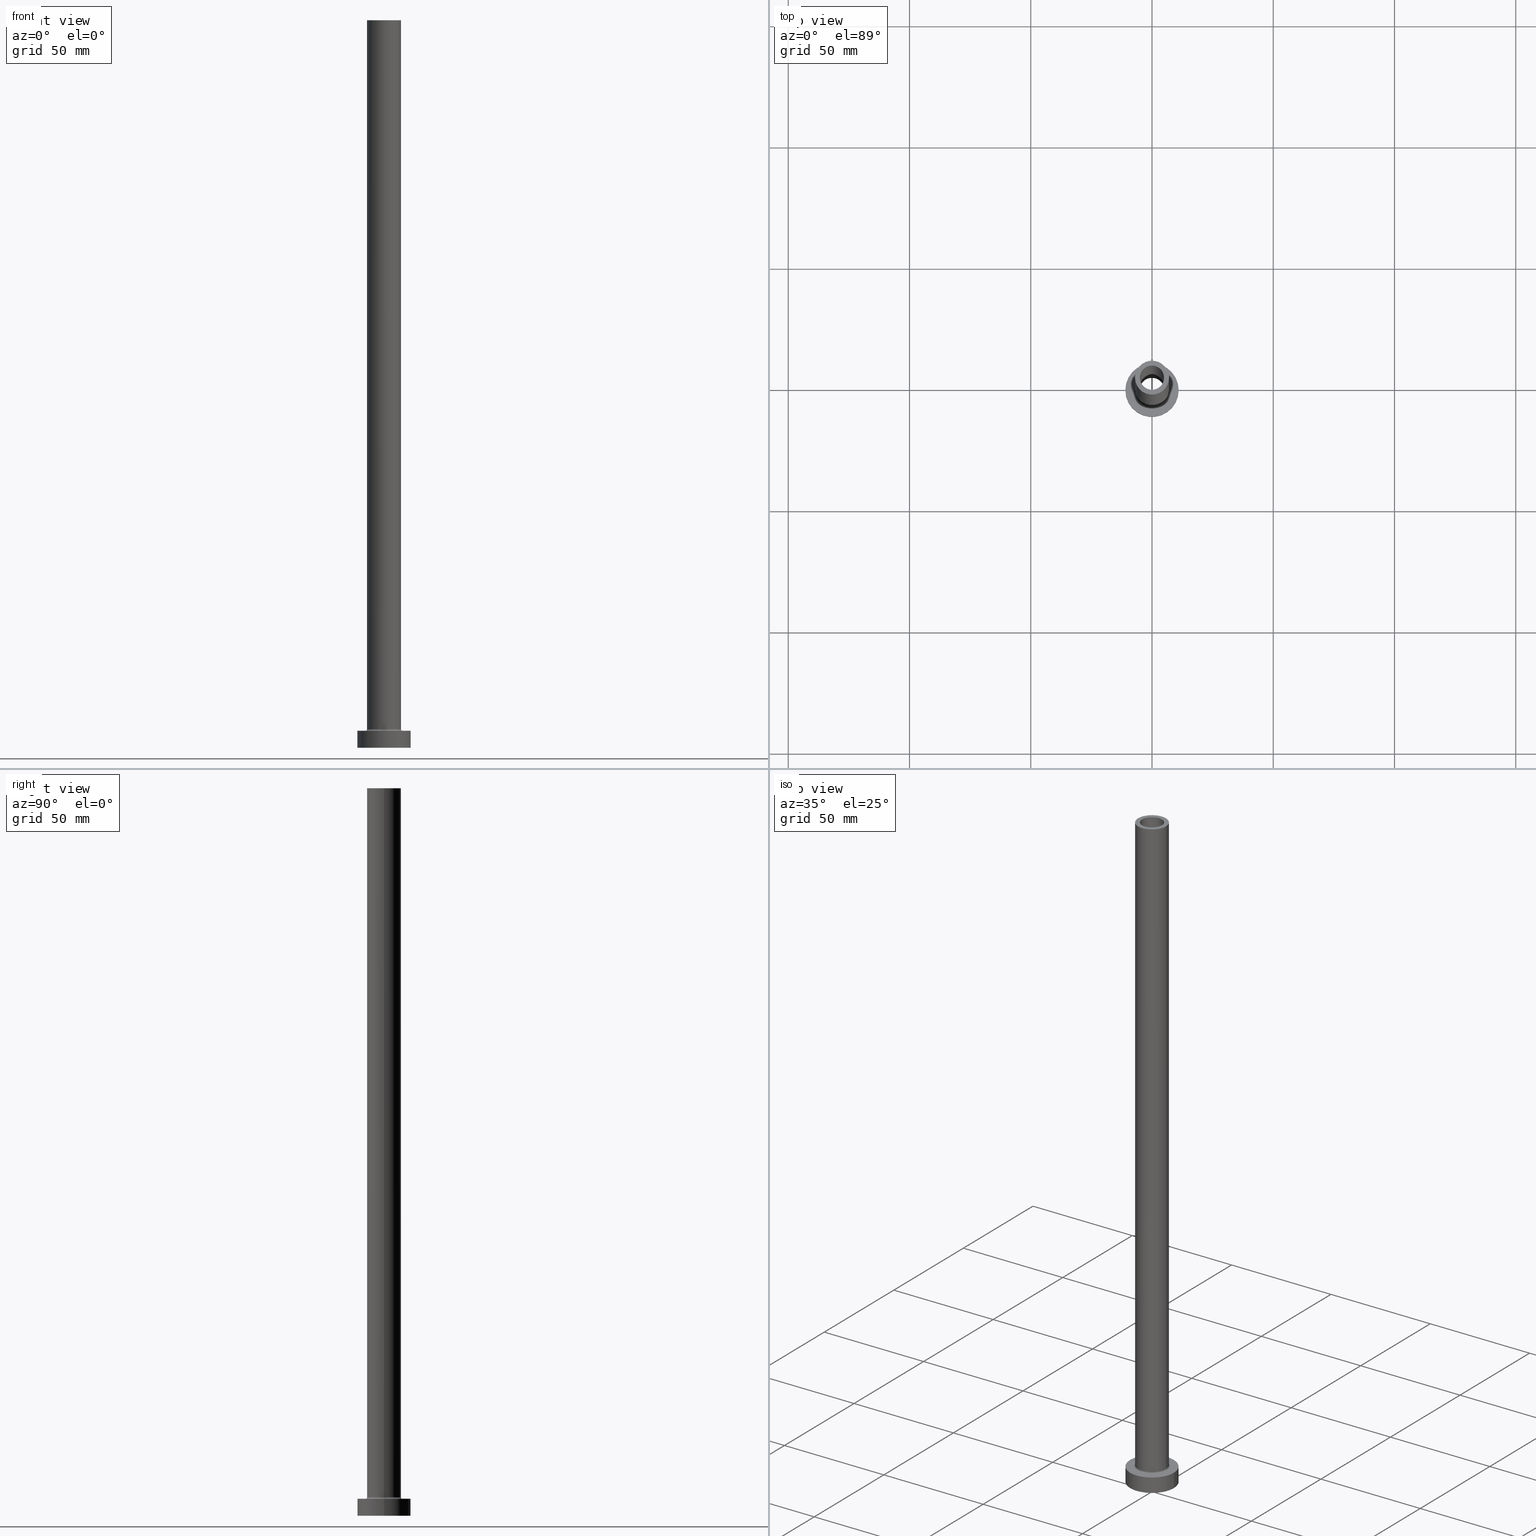
[diagram: canonical four-view strip — front | top / right | iso, engineering-drawing reading convention]
A machine part, canonical four-view strip (front | top / right | iso — engineering-drawing reading convention). The complete STEP part file that produces these views, byte-faithful:
ISO-10303-21;
HEADER;
FILE_DESCRIPTION (( 'STEP AP203' ),
    '1' );
FILE_NAME ('86ca.STEP',
    '2023-02-13T10:07:08',
    ( '' ),
    ( '' ),
    'SwSTEP 2.0',
    'SolidWorks 2019',
    '' );
FILE_SCHEMA (( 'CONFIG_CONTROL_DESIGN' ));
ENDSEC;

DATA;
#1 = FACE_BOUND ( 'NONE', #337, .T. ) ;
#2 = DIRECTION ( 'NONE',  ( 0.000000000000000000, 0.000000000000000000, -1.000000000000000000 ) ) ;
#3 = AXIS2_PLACEMENT_3D ( 'NONE', #274, #424, #245 ) ;
#4 = ORIENTED_EDGE ( 'NONE', *, *, #308, .T. ) ;
#5 = DIRECTION ( 'NONE',  ( 1.000000000000000000, 0.000000000000000000, 0.000000000000000000 ) ) ;
#6 = FACE_OUTER_BOUND ( 'NONE', #73, .T. ) ;
#7 = ORIENTED_EDGE ( 'NONE', *, *, #118, .F. ) ;
#8 = EDGE_LOOP ( 'NONE', ( #370, #262, #400, #59 ) ) ;
#9 = SECURITY_CLASSIFICATION ( '', '', #57 ) ;
#10 = DATE_AND_TIME ( #332, #362 ) ;
#11 = ORIENTED_EDGE ( 'NONE', *, *, #217, .F. ) ;
#12 = DIRECTION ( 'NONE',  ( 1.000000000000000000, 0.000000000000000000, 0.000000000000000000 ) ) ;
#13 = EDGE_LOOP ( 'NONE', ( #140, #438, #252, #247 ) ) ;
#14 = AXIS2_PLACEMENT_3D ( 'NONE', #342, #459, #51 ) ;
#15 = ORIENTED_EDGE ( 'NONE', *, *, #239, .T. ) ;
#16 = VECTOR ( 'NONE', #54, 1000.000000000000000 ) ;
#17 = CARTESIAN_POINT ( 'NONE',  ( 0.000000000000000000, 0.000000000000000000, 269.5663996924428716 ) ) ;
#18 = DIRECTION ( 'NONE',  ( 0.000000000000000000, 0.000000000000000000, 1.000000000000000000 ) ) ;
#19 = AXIS2_PLACEMENT_3D ( 'NONE', #119, #265, #304 ) ;
#20 = CYLINDRICAL_SURFACE ( 'NONE', #394, 11.00000000000000000 ) ;
#21 = CIRCLE ( 'NONE', #197, 5.150000000000001243 ) ;
#22 = PLANE ( 'NONE',  #282 ) ;
#23 = DIRECTION ( 'NONE',  ( 0.000000000000000000, 0.000000000000000000, -1.000000000000000000 ) ) ;
#24 = DIRECTION ( 'NONE',  ( 1.000000000000000000, 0.000000000000000000, 0.000000000000000000 ) ) ;
#25 = EDGE_CURVE ( 'NONE', #189, #432, #227, .T. ) ;
#26 = DIRECTION ( 'NONE',  ( -0.000000000000000000, -0.000000000000000000, -1.000000000000000000 ) ) ;
#27 = AXIS2_PLACEMENT_3D ( 'NONE', #357, #392, #31 ) ;
#28 = EDGE_CURVE ( 'NONE', #456, #371, #162, .T. ) ;
#29 = CARTESIAN_POINT ( 'NONE',  ( 0.000000000000000000, 0.000000000000000000, 300.0000000000000000 ) ) ;
#30 = DIRECTION ( 'NONE',  ( -1.000000000000000000, 0.000000000000000000, 0.000000000000000000 ) ) ;
#31 = DIRECTION ( 'NONE',  ( 1.000000000000000000, 0.000000000000000000, -0.000000000000000000 ) ) ;
#32 = PERSON ( 'NEUR�EN�', 'NEUR�EN�', 'NEUR�EN�', ('NEUR�EN�'), ('NEUR�EN�'), ('NEUR�EN�') ) ;
#33 = DATE_AND_TIME ( #45, #205 ) ;
#34 = FACE_OUTER_BOUND ( 'NONE', #159, .T. ) ;
#35 = DIRECTION ( 'NONE',  ( 1.000000000000000000, 0.000000000000000000, 0.000000000000000000 ) ) ;
#36 = CARTESIAN_POINT ( 'NONE',  ( 0.000000000000000000, 0.000000000000000000, 300.0000000000000000 ) ) ;
#37 = PERSON_AND_ORGANIZATION ( #32, #352 ) ;
#38 = PRODUCT_DEFINITION ( 'NEZN�M�', '', #215, #402 ) ;
#39 = ORIENTED_EDGE ( 'NONE', *, *, #203, .T. ) ;
#40 = CIRCLE ( 'NONE', #195, 0.7000000000000000666 ) ;
#41 = APPROVAL_STATUS ( 'not_yet_approved' ) ;
#42 = CIRCLE ( 'NONE', #166, 7.000000000000000888 ) ;
#43 = VERTEX_POINT ( 'NONE', #448 ) ;
#44 = EDGE_CURVE ( 'NONE', #216, #436, #163, .T. ) ;
#45 = CALENDAR_DATE ( 2023, 13, 2 ) ;
#46 = VERTEX_POINT ( 'NONE', #341 ) ;
#47 = ORIENTED_EDGE ( 'NONE', *, *, #25, .T. ) ;
#48 = CALENDAR_DATE ( 2023, 13, 2 ) ;
#49 = CARTESIAN_POINT ( 'NONE',  ( 0.000000000000000000, 0.000000000000000000, 7.699999999999985079 ) ) ;
#50 = AXIS2_PLACEMENT_3D ( 'NONE', #102, #219, #35 ) ;
#51 = DIRECTION ( 'NONE',  ( 1.000000000000000000, 0.000000000000000000, 0.000000000000000000 ) ) ;
#52 = CARTESIAN_POINT ( 'NONE',  ( 0.000000000000000000, 0.000000000000000000, 7.699999999999985079 ) ) ;
#53 = CIRCLE ( 'NONE', #14, 5.150000000000001243 ) ;
#54 = DIRECTION ( 'NONE',  ( 0.000000000000000000, 0.000000000000000000, -1.000000000000000000 ) ) ;
#55 = PRODUCT_RELATED_PRODUCT_CATEGORY ( 'detail', '', ( #148 ) ) ;
#56 = DIRECTION ( 'NONE',  ( 0.000000000000000000, -1.000000000000000000, 0.000000000000000000 ) ) ;
#57 = SECURITY_CLASSIFICATION_LEVEL ( 'unclassified' ) ;
#58 = CARTESIAN_POINT ( 'NONE',  ( -5.000000000000000000, 0.000000000000000000, 300.0000000000000000 ) ) ;
#59 = ORIENTED_EDGE ( 'NONE', *, *, #295, .T. ) ;
#60 = DIRECTION ( 'NONE',  ( 1.000000000000000000, 0.000000000000000000, 0.000000000000000000 ) ) ;
#61 = CC_DESIGN_PERSON_AND_ORGANIZATION_ASSIGNMENT ( #415, #423, ( #215 ) ) ;
#62 = CARTESIAN_POINT ( 'NONE',  ( 0.000000000000000000, 0.000000000000000000, 0.000000000000000000 ) ) ;
#63 = LOCAL_TIME ( 11, 7, 8.000000000000000000, #78 ) ;
#64 = CARTESIAN_POINT ( 'NONE',  ( 5.000000000000000000, 6.123233995736765296E-16, 300.0000000000000000 ) ) ;
#65 = ORIENTED_EDGE ( 'NONE', *, *, #287, .T. ) ;
#66 = CARTESIAN_POINT ( 'NONE',  ( 11.00000000000000000, 1.347111479062088405E-15, 7.000000000000000000 ) ) ;
#67 = CARTESIAN_POINT ( 'NONE',  ( 0.000000000000000000, 0.000000000000000000, 0.000000000000000000 ) ) ;
#68 = ORIENTED_EDGE ( 'NONE', *, *, #303, .T. ) ;
#69 = DIRECTION ( 'NONE',  ( -1.000000000000000000, 0.000000000000000000, 0.000000000000000000 ) ) ;
#70 = AXIS2_PLACEMENT_3D ( 'NONE', #356, #458, #30 ) ;
#71 = EDGE_LOOP ( 'NONE', ( #186, #389, #396, #112 ) ) ;
#72 = EDGE_CURVE ( 'NONE', #456, #46, #414, .T. ) ;
#73 = EDGE_LOOP ( 'NONE', ( #319, #355, #15, #105 ) ) ;
#74 = EDGE_LOOP ( 'NONE', ( #403, #188 ) ) ;
#75 =( LENGTH_UNIT ( ) NAMED_UNIT ( * ) SI_UNIT ( .MILLI., .METRE. ) );
#76 = VECTOR ( 'NONE', #126, 1000.000000000000000 ) ;
#77 = ORIENTED_EDGE ( 'NONE', *, *, #174, .T. ) ;
#78 = COORDINATED_UNIVERSAL_TIME_OFFSET ( 1, 0, .AHEAD. ) ;
#79 = CC_DESIGN_PERSON_AND_ORGANIZATION_ASSIGNMENT ( #294, #437, ( #38 ) ) ;
#80 = ORIENTED_EDGE ( 'NONE', *, *, #203, .F. ) ;
#81 = FACE_OUTER_BOUND ( 'NONE', #8, .T. ) ;
#82 = LINE ( 'NONE', #171, #76 ) ;
#83 = DIRECTION ( 'NONE',  ( 0.000000000000000000, 0.000000000000000000, 1.000000000000000000 ) ) ;
#84 = AXIS2_PLACEMENT_3D ( 'NONE', #430, #258, #367 ) ;
#85 = DIRECTION ( 'NONE',  ( 1.224646799147353207E-16, 1.000000000000000000, -0.000000000000000000 ) ) ;
#86 = EDGE_CURVE ( 'NONE', #216, #336, #151, .T. ) ;
#87 = DIRECTION ( 'NONE',  ( 1.000000000000000000, 0.000000000000000000, 0.000000000000000000 ) ) ;
#88 = SHAPE_DEFINITION_REPRESENTATION ( #387, #439 ) ;
#89 = EDGE_CURVE ( 'NONE', #399, #419, #40, .T. ) ;
#90 = CARTESIAN_POINT ( 'NONE',  ( 11.00000000000000000, 1.347111479062088405E-15, 7.000000000000000000 ) ) ;
#91 = APPROVAL_PERSON_ORGANIZATION ( #256, #280, #185 ) ;
#92 = DIRECTION ( 'NONE',  ( -0.000000000000000000, -0.000000000000000000, -1.000000000000000000 ) ) ;
#93 = COORDINATED_UNIVERSAL_TIME_OFFSET ( 1, 0, .AHEAD. ) ;
#94 = CARTESIAN_POINT ( 'NONE',  ( 0.000000000000000000, 0.000000000000000000, 300.0000000000000000 ) ) ;
#95 = LINE ( 'NONE', #377, #16 ) ;
#96 = VECTOR ( 'NONE', #421, 1000.000000000000000 ) ;
#97 = ORIENTED_EDGE ( 'NONE', *, *, #383, .T. ) ;
#98 = CYLINDRICAL_SURFACE ( 'NONE', #254, 5.150000000000001243 ) ;
#99 = AXIS2_PLACEMENT_3D ( 'NONE', #141, #167, #460 ) ;
#100 = DIRECTION ( 'NONE',  ( 1.000000000000000000, 0.000000000000000000, 0.000000000000000000 ) ) ;
#101 = EDGE_CURVE ( 'NONE', #220, #399, #212, .T. ) ;
#102 = CARTESIAN_POINT ( 'NONE',  ( 0.000000000000000000, 0.000000000000000000, 7.000000000000000000 ) ) ;
#103 = CARTESIAN_POINT ( 'NONE',  ( 0.000000000000000000, 0.000000000000000000, 0.000000000000000000 ) ) ;
#104 = DIRECTION ( 'NONE',  ( -0.000000000000000000, -0.000000000000000000, -1.000000000000000000 ) ) ;
#105 = ORIENTED_EDGE ( 'NONE', *, *, #118, .T. ) ;
#106 = ADVANCED_FACE ( 'NONE', ( #409 ), #268, .F. ) ;
#107 = CIRCLE ( 'NONE', #374, 5.000000000000000000 ) ;
#108 = EDGE_LOOP ( 'NONE', ( #152, #298, #327, #368 ) ) ;
#109 =( NAMED_UNIT ( * ) SI_UNIT ( $, .STERADIAN. ) SOLID_ANGLE_UNIT ( ) );
#110 = ORIENTED_EDGE ( 'NONE', *, *, #297, .F. ) ;
#111 = APPLICATION_CONTEXT ( 'configuration controlled 3d designs of mechanical parts and assemblies' ) ;
#112 = ORIENTED_EDGE ( 'NONE', *, *, #44, .F. ) ;
#113 = AXIS2_PLACEMENT_3D ( 'NONE', #234, #445, #233 ) ;
#114 = AXIS2_PLACEMENT_3D ( 'NONE', #62, #137, #24 ) ;
#115 = ORIENTED_EDGE ( 'NONE', *, *, #133, .F. ) ;
#116 = APPROVAL_PERSON_ORGANIZATION ( #237, #175, #449 ) ;
#117 = DIRECTION ( 'NONE',  ( 1.000000000000000000, 0.000000000000000000, 0.000000000000000000 ) ) ;
#118 = EDGE_CURVE ( 'NONE', #399, #220, #422, .T. ) ;
#119 = CARTESIAN_POINT ( 'NONE',  ( 0.000000000000000000, 0.000000000000000000, 7.000000000000000000 ) ) ;
#120 = CC_DESIGN_PERSON_AND_ORGANIZATION_ASSIGNMENT ( #37, #291, ( #148 ) ) ;
#121 = FACE_OUTER_BOUND ( 'NONE', #108, .T. ) ;
#122 = VECTOR ( 'NONE', #231, 1000.000000000000000 ) ;
#123 = CARTESIAN_POINT ( 'NONE',  ( 7.000000000000000888, 8.572527594031474176E-16, 300.0000000000000000 ) ) ;
#124 = APPROVAL_DATE_TIME ( #266, #143 ) ;
#125 = CALENDAR_DATE ( 2023, 13, 2 ) ;
#126 = DIRECTION ( 'NONE',  ( 0.000000000000000000, 0.000000000000000000, -1.000000000000000000 ) ) ;
#127 = CC_DESIGN_PERSON_AND_ORGANIZATION_ASSIGNMENT ( #452, #309, ( #215 ) ) ;
#128 = TOROIDAL_SURFACE ( 'NONE', #395, 7.700000000000001066, 0.6999999999999999556 ) ;
#129 = FACE_OUTER_BOUND ( 'NONE', #71, .T. ) ;
#130 = VECTOR ( 'NONE', #428, 1000.000000000000000 ) ;
#131 = PERSON_AND_ORGANIZATION_ROLE ( 'classification_officer' ) ;
#132 = ORIENTED_EDGE ( 'NONE', *, *, #242, .T. ) ;
#133 = EDGE_CURVE ( 'NONE', #46, #456, #53, .T. ) ;
#134 = LINE ( 'NONE', #66, #388 ) ;
#135 = CARTESIAN_POINT ( 'NONE',  ( 0.000000000000000000, 0.000000000000000000, 7.000000000000000000 ) ) ;
#136 = DATE_AND_TIME ( #125, #404 ) ;
#137 = DIRECTION ( 'NONE',  ( 0.000000000000000000, 0.000000000000000000, 1.000000000000000000 ) ) ;
#138 = CARTESIAN_POINT ( 'NONE',  ( -7.000000000000000888, 0.000000000000000000, 300.0000000000000000 ) ) ;
#139 = AXIS2_PLACEMENT_3D ( 'NONE', #269, #413, #87 ) ;
#140 = ORIENTED_EDGE ( 'NONE', *, *, #133, .T. ) ;
#141 = CARTESIAN_POINT ( 'NONE',  ( 0.000000000000000000, 0.000000000000000000, 255.0000000000000000 ) ) ;
#142 = PLANE ( 'NONE',  #27 ) ;
#143 = APPROVAL ( #325, 'NEUR�EN�' ) ;
#144 = EDGE_LOOP ( 'NONE', ( #80, #47, #68, #110 ) ) ;
#145 = CARTESIAN_POINT ( 'NONE',  ( 0.000000000000000000, 0.000000000000000000, 300.0000000000000000 ) ) ;
#146 = CARTESIAN_POINT ( 'NONE',  ( 7.700000000000001066, 0.000000000000000000, 6.999999999999992006 ) ) ;
#147 = ADVANCED_FACE ( 'NONE', ( #121 ), #20, .T. ) ;
#148 = PRODUCT ( '86ca', '86ca', '', ( #397 ) ) ;
#149 = ADVANCED_FACE ( 'NONE', ( #264 ), #214, .F. ) ;
#150 =( NAMED_UNIT ( * ) PLANE_ANGLE_UNIT ( ) SI_UNIT ( $, .RADIAN. ) );
#151 = CIRCLE ( 'NONE', #19, 11.00000000000000000 ) ;
#152 = ORIENTED_EDGE ( 'NONE', *, *, #365, .F. ) ;
#153 = APPLICATION_PROTOCOL_DEFINITION ( 'international standard', 'config_control_design', 1994, #111 ) ;
#154 = AXIS2_PLACEMENT_3D ( 'NONE', #145, #183, #178 ) ;
#155 = EDGE_LOOP ( 'NONE', ( #218, #334 ) ) ;
#156 = APPROVAL_DATE_TIME ( #10, #280 ) ;
#157 = ORIENTED_EDGE ( 'NONE', *, *, #239, .F. ) ;
#158 = APPROVAL_ROLE ( '' ) ;
#159 = EDGE_LOOP ( 'NONE', ( #11, #77, #384, #157 ) ) ;
#160 = CC_DESIGN_APPROVAL ( #280, ( #38 ) ) ;
#161 = VERTEX_POINT ( 'NONE', #340 ) ;
#162 = LINE ( 'NONE', #193, #96 ) ;
#163 = LINE ( 'NONE', #302, #349 ) ;
#164 = CC_DESIGN_PERSON_AND_ORGANIZATION_ASSIGNMENT ( #200, #131, ( #9 ) ) ;
#165 = DIRECTION ( 'NONE',  ( 1.000000000000000000, 0.000000000000000000, 0.000000000000000000 ) ) ;
#166 = AXIS2_PLACEMENT_3D ( 'NONE', #279, #246, #100 ) ;
#167 = DIRECTION ( 'NONE',  ( 0.000000000000000000, 0.000000000000000000, 1.000000000000000000 ) ) ;
#168 = CYLINDRICAL_SURFACE ( 'NONE', #70, 11.00000000000000000 ) ;
#169 = DIRECTION ( 'NONE',  ( 1.000000000000000000, 0.000000000000000000, 0.000000000000000000 ) ) ;
#170 = DIRECTION ( 'NONE',  ( -1.000000000000000000, 1.224646799147351975E-16, 0.000000000000000000 ) ) ;
#171 = CARTESIAN_POINT ( 'NONE',  ( -5.150000000000001243, 0.000000000000000000, 269.5663996924428716 ) ) ;
#172 = DIRECTION ( 'NONE',  ( 1.000000000000000000, 0.000000000000000000, 0.000000000000000000 ) ) ;
#173 = CARTESIAN_POINT ( 'NONE',  ( 7.700000000000001066, 0.000000000000000000, 7.699999999999985079 ) ) ;
#174 = EDGE_CURVE ( 'NONE', #43, #220, #376, .T. ) ;
#175 = APPROVAL ( #378, 'NEUR�EN�' ) ;
#176 = FACE_OUTER_BOUND ( 'NONE', #350, .T. ) ;
#177 = ORIENTED_EDGE ( 'NONE', *, *, #89, .T. ) ;
#178 = DIRECTION ( 'NONE',  ( -1.000000000000000000, 0.000000000000000000, 0.000000000000000000 ) ) ;
#179 = CIRCLE ( 'NONE', #84, 5.000000000000000000 ) ;
#180 = CYLINDRICAL_SURFACE ( 'NONE', #338, 7.000000000000000888 ) ;
#181 = EDGE_LOOP ( 'NONE', ( #429, #132 ) ) ;
#182 = DIRECTION ( 'NONE',  ( 0.000000000000000000, 0.000000000000000000, 1.000000000000000000 ) ) ;
#183 = DIRECTION ( 'NONE',  ( -0.000000000000000000, -0.000000000000000000, -1.000000000000000000 ) ) ;
#184 = ORIENTED_EDGE ( 'NONE', *, *, #101, .F. ) ;
#185 = APPROVAL_ROLE ( '' ) ;
#186 = ORIENTED_EDGE ( 'NONE', *, *, #242, .F. ) ;
#187 = DATE_TIME_ROLE ( 'creation_date' ) ;
#188 = ORIENTED_EDGE ( 'NONE', *, *, #259, .F. ) ;
#189 = VERTEX_POINT ( 'NONE', #64 ) ;
#190 = AXIS2_PLACEMENT_3D ( 'NONE', #52, #194, #165 ) ;
#191 = CIRCLE ( 'NONE', #292, 5.150000000000001243 ) ;
#192 = DIRECTION ( 'NONE',  ( 0.000000000000000000, 0.000000000000000000, 1.000000000000000000 ) ) ;
#193 = CARTESIAN_POINT ( 'NONE',  ( 5.150000000000001243, 6.306931015608869596E-16, 269.5663996924428716 ) ) ;
#194 = DIRECTION ( 'NONE',  ( 0.000000000000000000, 0.000000000000000000, 1.000000000000000000 ) ) ;
#195 = AXIS2_PLACEMENT_3D ( 'NONE', #318, #85, #170 ) ;
#196 = FACE_BOUND ( 'NONE', #330, .T. ) ;
#197 = AXIS2_PLACEMENT_3D ( 'NONE', #67, #92, #348 ) ;
#198 = DIRECTION ( 'NONE',  ( 0.000000000000000000, 0.000000000000000000, -1.000000000000000000 ) ) ;
#199 = FACE_OUTER_BOUND ( 'NONE', #427, .T. ) ;
#200 = PERSON_AND_ORGANIZATION ( #32, #352 ) ;
#201 = DIRECTION ( 'NONE',  ( 0.000000000000000000, 0.000000000000000000, 1.000000000000000000 ) ) ;
#202 = AXIS2_PLACEMENT_3D ( 'NONE', #49, #83, #375 ) ;
#203 = EDGE_CURVE ( 'NONE', #189, #358, #95, .T. ) ;
#204 = ADVANCED_FACE ( 'NONE', ( #196, #346 ), #22, .T. ) ;
#205 = LOCAL_TIME ( 11, 7, 8.000000000000000000, #221 ) ;
#206 = CARTESIAN_POINT ( 'NONE',  ( 0.000000000000000000, 0.000000000000000000, 255.0000000000000000 ) ) ;
#207 = DIRECTION ( 'NONE',  ( -1.000000000000000000, 0.000000000000000000, 0.000000000000000000 ) ) ;
#208 = PLANE ( 'NONE',  #99 ) ;
#209 = CARTESIAN_POINT ( 'NONE',  ( 11.00000000000000000, 1.347111479062088405E-15, 0.000000000000000000 ) ) ;
#210 = COORDINATED_UNIVERSAL_TIME_OFFSET ( 1, 0, .AHEAD. ) ;
#211 = CARTESIAN_POINT ( 'NONE',  ( 0.000000000000000000, 0.000000000000000000, 7.000000000000000000 ) ) ;
#212 = CIRCLE ( 'NONE', #321, 7.000000000000000888 ) ;
#213 = CARTESIAN_POINT ( 'NONE',  ( -11.00000000000000000, 0.000000000000000000, 0.000000000000000000 ) ) ;
#214 = TOROIDAL_SURFACE ( 'NONE', #190, 7.700000000000001066, 0.6999999999999999556 ) ;
#215 = PRODUCT_DEFINITION_FORMATION_WITH_SPECIFIED_SOURCE ( 'LIBOVOLN�', '', #148, .NOT_KNOWN. ) ;
#216 = VERTEX_POINT ( 'NONE', #354 ) ;
#217 = EDGE_CURVE ( 'NONE', #43, #161, #305, .T. ) ;
#218 = ORIENTED_EDGE ( 'NONE', *, *, #295, .F. ) ;
#219 = DIRECTION ( 'NONE',  ( -0.000000000000000000, -0.000000000000000000, -1.000000000000000000 ) ) ;
#220 = VERTEX_POINT ( 'NONE', #406 ) ;
#221 = COORDINATED_UNIVERSAL_TIME_OFFSET ( 1, 0, .AHEAD. ) ;
#222 = AXIS2_PLACEMENT_3D ( 'NONE', #17, #2, #69 ) ;
#223 = ORIENTED_EDGE ( 'NONE', *, *, #451, .F. ) ;
#224 = ADVANCED_FACE ( 'NONE', ( #81 ), #228, .F. ) ;
#225 = APPLICATION_CONTEXT ( 'configuration controlled 3d designs of mechanical parts and assemblies' ) ;
#226 = VERTEX_POINT ( 'NONE', #209 ) ;
#227 = CIRCLE ( 'NONE', #359, 5.000000000000000000 ) ;
#228 = CYLINDRICAL_SURFACE ( 'NONE', #222, 5.150000000000001243 ) ;
#229 = ADVANCED_FACE ( 'NONE', ( #284, #176 ), #142, .T. ) ;
#230 = CC_DESIGN_DATE_AND_TIME_ASSIGNMENT ( #33, #187, ( #38 ) ) ;
#231 = DIRECTION ( 'NONE',  ( 0.000000000000000000, 0.000000000000000000, -1.000000000000000000 ) ) ;
#232 = AXIS2_PLACEMENT_3D ( 'NONE', #29, #192, #172 ) ;
#233 = DIRECTION ( 'NONE',  ( -1.000000000000000000, 0.000000000000000000, 0.000000000000000000 ) ) ;
#234 = CARTESIAN_POINT ( 'NONE',  ( 0.000000000000000000, 0.000000000000000000, 300.0000000000000000 ) ) ;
#235 = CALENDAR_DATE ( 2023, 13, 2 ) ;
#236 = CARTESIAN_POINT ( 'NONE',  ( 0.000000000000000000, 0.000000000000000000, 7.699999999999985079 ) ) ;
#237 = PERSON_AND_ORGANIZATION ( #32, #352 ) ;
#238 = PLANE ( 'NONE',  #426 ) ;
#239 = EDGE_CURVE ( 'NONE', #161, #399, #286, .T. ) ;
#240 = CARTESIAN_POINT ( 'NONE',  ( -7.700000000000001066, 9.429780353434621002E-16, 6.999999999999992006 ) ) ;
#241 = CARTESIAN_POINT ( 'NONE',  ( 0.000000000000000000, 0.000000000000000000, 7.000000000000000000 ) ) ;
#242 = EDGE_CURVE ( 'NONE', #336, #216, #244, .T. ) ;
#243 = COORDINATED_UNIVERSAL_TIME_OFFSET ( 1, 0, .AHEAD. ) ;
#244 = CIRCLE ( 'NONE', #454, 11.00000000000000000 ) ;
#245 = DIRECTION ( 'NONE',  ( 1.000000000000000000, 0.000000000000000000, 0.000000000000000000 ) ) ;
#246 = DIRECTION ( 'NONE',  ( 0.000000000000000000, 0.000000000000000000, 1.000000000000000000 ) ) ;
#247 = ORIENTED_EDGE ( 'NONE', *, *, #360, .F. ) ;
#248 = DIRECTION ( 'NONE',  ( 0.000000000000000000, 0.000000000000000000, 1.000000000000000000 ) ) ;
#249 = DIRECTION ( 'NONE',  ( 0.000000000000000000, 0.000000000000000000, 1.000000000000000000 ) ) ;
#250 = CARTESIAN_POINT ( 'NONE',  ( 5.150000000000001243, 6.306931015608869596E-16, 255.0000000000000000 ) ) ;
#251 = CLOSED_SHELL ( 'NONE', ( #407, #393, #149, #263, #331, #147, #204, #372, #457, #229, #313, #224, #328, #106 ) ) ;
#252 = ORIENTED_EDGE ( 'NONE', *, *, #343, .T. ) ;
#253 = CARTESIAN_POINT ( 'NONE',  ( 0.000000000000000000, 0.000000000000000000, 0.000000000000000000 ) ) ;
#254 = AXIS2_PLACEMENT_3D ( 'NONE', #381, #23, #310 ) ;
#255 = VERTEX_POINT ( 'NONE', #322 ) ;
#256 = PERSON_AND_ORGANIZATION ( #32, #352 ) ;
#257 = EDGE_LOOP ( 'NONE', ( #7, #177, #223, #366 ) ) ;
#258 = DIRECTION ( 'NONE',  ( 0.000000000000000000, 0.000000000000000000, 1.000000000000000000 ) ) ;
#259 = EDGE_CURVE ( 'NONE', #226, #436, #324, .T. ) ;
#260 = ORIENTED_EDGE ( 'NONE', *, *, #297, .T. ) ;
#261 = AXIS2_PLACEMENT_3D ( 'NONE', #173, #56, #198 ) ;
#262 = ORIENTED_EDGE ( 'NONE', *, *, #72, .T. ) ;
#263 = ADVANCED_FACE ( 'NONE', ( #34 ), #180, .T. ) ;
#264 = FACE_OUTER_BOUND ( 'NONE', #257, .T. ) ;
#265 = DIRECTION ( 'NONE',  ( 0.000000000000000000, 0.000000000000000000, 1.000000000000000000 ) ) ;
#266 = DATE_AND_TIME ( #48, #63 ) ;
#267 = APPROVAL_PERSON_ORGANIZATION ( #335, #143, #158 ) ;
#268 = CYLINDRICAL_SURFACE ( 'NONE', #113, 5.000000000000000000 ) ;
#269 = CARTESIAN_POINT ( 'NONE',  ( 0.000000000000000000, 0.000000000000000000, 255.0000000000000000 ) ) ;
#270 = DATE_AND_TIME ( #235, #306 ) ;
#271 = APPROVAL_DATE_TIME ( #136, #175 ) ;
#272 = CYLINDRICAL_SURFACE ( 'NONE', #312, 5.000000000000000000 ) ;
#273 = DATE_TIME_ROLE ( 'classification_date' ) ;
#274 = CARTESIAN_POINT ( 'NONE',  ( 0.000000000000000000, 0.000000000000000000, 300.0000000000000000 ) ) ;
#275 = VERTEX_POINT ( 'NONE', #146 ) ;
#276 = CARTESIAN_POINT ( 'NONE',  ( 5.150000000000001243, 6.306931015608869596E-16, 0.000000000000000000 ) ) ;
#277 = DIRECTION ( 'NONE',  ( 1.000000000000000000, 0.000000000000000000, 0.000000000000000000 ) ) ;
#278 = FACE_OUTER_BOUND ( 'NONE', #74, .T. ) ;
#279 = CARTESIAN_POINT ( 'NONE',  ( 0.000000000000000000, 0.000000000000000000, 300.0000000000000000 ) ) ;
#280 = APPROVAL ( #41, 'NEUR�EN�' ) ;
#281 = ORIENTED_EDGE ( 'NONE', *, *, #447, .T. ) ;
#282 = AXIS2_PLACEMENT_3D ( 'NONE', #241, #386, #373 ) ;
#283 = CARTESIAN_POINT ( 'NONE',  ( 0.000000000000000000, 0.000000000000000000, 7.000000000000000000 ) ) ;
#284 = FACE_BOUND ( 'NONE', #293, .T. ) ;
#285 = EDGE_LOOP ( 'NONE', ( #115, #405 ) ) ;
#286 = LINE ( 'NONE', #138, #130 ) ;
#287 = EDGE_CURVE ( 'NONE', #161, #43, #42, .T. ) ;
#288 = VERTEX_POINT ( 'NONE', #391 ) ;
#289 = DIRECTION ( 'NONE',  ( 1.000000000000000000, 0.000000000000000000, 0.000000000000000000 ) ) ;
#290 = ORIENTED_EDGE ( 'NONE', *, *, #440, .F. ) ;
#291 = PERSON_AND_ORGANIZATION_ROLE ( 'design_owner' ) ;
#292 = AXIS2_PLACEMENT_3D ( 'NONE', #390, #26, #408 ) ;
#293 = EDGE_LOOP ( 'NONE', ( #443, #435 ) ) ;
#294 = PERSON_AND_ORGANIZATION ( #32, #352 ) ;
#295 = EDGE_CURVE ( 'NONE', #288, #371, #21, .T. ) ;
#296 = ORIENTED_EDGE ( 'NONE', *, *, #440, .T. ) ;
#297 = EDGE_CURVE ( 'NONE', #358, #255, #107, .T. ) ;
#298 = ORIENTED_EDGE ( 'NONE', *, *, #86, .F. ) ;
#299 = UNCERTAINTY_MEASURE_WITH_UNIT (LENGTH_MEASURE( 1.000000000000000082E-05 ), #75, 'distance_accuracy_value', 'NONE');
#300 =( GEOMETRIC_REPRESENTATION_CONTEXT ( 3 ) GLOBAL_UNCERTAINTY_ASSIGNED_CONTEXT ( ( #299 ) ) GLOBAL_UNIT_ASSIGNED_CONTEXT ( ( #75, #150, #109 ) ) REPRESENTATION_CONTEXT ( 'NONE', 'WORKASPACE' ) );
#301 = ORIENTED_EDGE ( 'NONE', *, *, #447, .F. ) ;
#302 = CARTESIAN_POINT ( 'NONE',  ( -11.00000000000000000, 0.000000000000000000, 7.000000000000000000 ) ) ;
#303 = EDGE_CURVE ( 'NONE', #432, #255, #315, .T. ) ;
#304 = DIRECTION ( 'NONE',  ( 1.000000000000000000, 0.000000000000000000, 0.000000000000000000 ) ) ;
#305 = CIRCLE ( 'NONE', #232, 7.000000000000000888 ) ;
#306 = LOCAL_TIME ( 11, 7, 8.000000000000000000, #93 ) ;
#307 = DIRECTION ( 'NONE',  ( -0.000000000000000000, -0.000000000000000000, -1.000000000000000000 ) ) ;
#308 = EDGE_CURVE ( 'NONE', #432, #189, #417, .T. ) ;
#309 = PERSON_AND_ORGANIZATION_ROLE ( 'design_supplier' ) ;
#310 = DIRECTION ( 'NONE',  ( -1.000000000000000000, 0.000000000000000000, 0.000000000000000000 ) ) ;
#311 = DIRECTION ( 'NONE',  ( -1.000000000000000000, 0.000000000000000000, 0.000000000000000000 ) ) ;
#312 = AXIS2_PLACEMENT_3D ( 'NONE', #94, #416, #311 ) ;
#313 = ADVANCED_FACE ( 'NONE', ( #385 ), #128, .F. ) ;
#314 = ORIENTED_EDGE ( 'NONE', *, *, #451, .T. ) ;
#315 = LINE ( 'NONE', #58, #122 ) ;
#316 = CARTESIAN_POINT ( 'NONE',  ( 0.000000000000000000, 0.000000000000000000, 7.699999999999985079 ) ) ;
#317 = CARTESIAN_POINT ( 'NONE',  ( 0.000000000000000000, 0.000000000000000000, 0.000000000000000000 ) ) ;
#318 = CARTESIAN_POINT ( 'NONE',  ( -7.700000000000001066, 9.429780353434621002E-16, 7.699999999999985079 ) ) ;
#319 = ORIENTED_EDGE ( 'NONE', *, *, #174, .F. ) ;
#320 = DIRECTION ( 'NONE',  ( 0.000000000000000000, 0.000000000000000000, 1.000000000000000000 ) ) ;
#321 = AXIS2_PLACEMENT_3D ( 'NONE', #316, #18, #117 ) ;
#322 = CARTESIAN_POINT ( 'NONE',  ( -5.000000000000000000, 0.000000000000000000, 255.0000000000000000 ) ) ;
#323 = ORIENTED_EDGE ( 'NONE', *, *, #89, .F. ) ;
#324 = CIRCLE ( 'NONE', #446, 11.00000000000000000 ) ;
#325 = APPROVAL_STATUS ( 'not_yet_approved' ) ;
#326 = DIRECTION ( 'NONE',  ( -0.000000000000000000, -0.000000000000000000, -1.000000000000000000 ) ) ;
#327 = ORIENTED_EDGE ( 'NONE', *, *, #44, .T. ) ;
#328 = ADVANCED_FACE ( 'NONE', ( #1, #353 ), #208, .F. ) ;
#329 = ORIENTED_EDGE ( 'NONE', *, *, #217, .T. ) ;
#330 = EDGE_LOOP ( 'NONE', ( #314, #296 ) ) ;
#331 = ADVANCED_FACE ( 'NONE', ( #129 ), #168, .T. ) ;
#332 = CALENDAR_DATE ( 2023, 13, 2 ) ;
#333 = CIRCLE ( 'NONE', #50, 7.700000000000001066 ) ;
#334 = ORIENTED_EDGE ( 'NONE', *, *, #343, .F. ) ;
#335 = PERSON_AND_ORGANIZATION ( #32, #352 ) ;
#336 = VERTEX_POINT ( 'NONE', #90 ) ;
#337 = EDGE_LOOP ( 'NONE', ( #281, #260 ) ) ;
#338 = AXIS2_PLACEMENT_3D ( 'NONE', #461, #326, #425 ) ;
#339 = CIRCLE ( 'NONE', #114, 11.00000000000000000 ) ;
#340 = CARTESIAN_POINT ( 'NONE',  ( -7.000000000000000888, 0.000000000000000000, 300.0000000000000000 ) ) ;
#341 = CARTESIAN_POINT ( 'NONE',  ( -5.150000000000001243, 0.000000000000000000, 255.0000000000000000 ) ) ;
#342 = CARTESIAN_POINT ( 'NONE',  ( 0.000000000000000000, 0.000000000000000000, 255.0000000000000000 ) ) ;
#343 = EDGE_CURVE ( 'NONE', #371, #288, #191, .T. ) ;
#344 = AXIS2_PLACEMENT_3D ( 'NONE', #283, #104, #289 ) ;
#345 = CC_DESIGN_APPROVAL ( #175, ( #9 ) ) ;
#346 = FACE_OUTER_BOUND ( 'NONE', #181, .T. ) ;
#347 = FACE_OUTER_BOUND ( 'NONE', #13, .T. ) ;
#348 = DIRECTION ( 'NONE',  ( 1.000000000000000000, 0.000000000000000000, 0.000000000000000000 ) ) ;
#349 = VECTOR ( 'NONE', #444, 1000.000000000000000 ) ;
#350 = EDGE_LOOP ( 'NONE', ( #65, #329 ) ) ;
#351 = CARTESIAN_POINT ( 'NONE',  ( -5.000000000000000000, 0.000000000000000000, 300.0000000000000000 ) ) ;
#352 = ORGANIZATION ( 'NEUR�EN�', 'NEUR�EN�', '' ) ;
#353 = FACE_OUTER_BOUND ( 'NONE', #285, .T. ) ;
#354 = CARTESIAN_POINT ( 'NONE',  ( -11.00000000000000000, 0.000000000000000000, 7.000000000000000000 ) ) ;
#355 = ORIENTED_EDGE ( 'NONE', *, *, #287, .F. ) ;
#356 = CARTESIAN_POINT ( 'NONE',  ( 0.000000000000000000, 0.000000000000000000, 7.000000000000000000 ) ) ;
#357 = CARTESIAN_POINT ( 'NONE',  ( 0.000000000000000000, 0.000000000000000000, 300.0000000000000000 ) ) ;
#358 = VERTEX_POINT ( 'NONE', #453 ) ;
#359 = AXIS2_PLACEMENT_3D ( 'NONE', #36, #182, #277 ) ;
#360 = EDGE_CURVE ( 'NONE', #46, #288, #82, .T. ) ;
#361 = DIRECTION ( 'NONE',  ( 0.000000000000000000, 0.000000000000000000, 1.000000000000000000 ) ) ;
#362 = LOCAL_TIME ( 11, 7, 8.000000000000000000, #210 ) ;
#363 = CYLINDRICAL_SURFACE ( 'NONE', #154, 7.000000000000000888 ) ;
#364 = ORIENTED_EDGE ( 'NONE', *, *, #303, .F. ) ;
#365 = EDGE_CURVE ( 'NONE', #336, #226, #134, .T. ) ;
#366 = ORIENTED_EDGE ( 'NONE', *, *, #383, .F. ) ;
#367 = DIRECTION ( 'NONE',  ( 1.000000000000000000, 0.000000000000000000, 0.000000000000000000 ) ) ;
#368 = ORIENTED_EDGE ( 'NONE', *, *, #369, .T. ) ;
#369 = EDGE_CURVE ( 'NONE', #436, #226, #339, .T. ) ;
#370 = ORIENTED_EDGE ( 'NONE', *, *, #28, .F. ) ;
#371 = VERTEX_POINT ( 'NONE', #276 ) ;
#372 = ADVANCED_FACE ( 'NONE', ( #379, #278 ), #238, .F. ) ;
#373 = DIRECTION ( 'NONE',  ( 1.000000000000000000, 0.000000000000000000, -0.000000000000000000 ) ) ;
#374 = AXIS2_PLACEMENT_3D ( 'NONE', #206, #418, #60 ) ;
#375 = DIRECTION ( 'NONE',  ( 1.000000000000000000, 0.000000000000000000, 0.000000000000000000 ) ) ;
#376 = LINE ( 'NONE', #123, #434 ) ;
#377 = CARTESIAN_POINT ( 'NONE',  ( 5.000000000000000000, 6.123233995736765296E-16, 300.0000000000000000 ) ) ;
#378 = APPROVAL_STATUS ( 'not_yet_approved' ) ;
#379 = FACE_BOUND ( 'NONE', #155, .T. ) ;
#380 = CIRCLE ( 'NONE', #261, 0.7000000000000000666 ) ;
#381 = CARTESIAN_POINT ( 'NONE',  ( 0.000000000000000000, 0.000000000000000000, 269.5663996924428716 ) ) ;
#382 = DIRECTION ( 'NONE',  ( -0.000000000000000000, -0.000000000000000000, -1.000000000000000000 ) ) ;
#383 = EDGE_CURVE ( 'NONE', #220, #275, #380, .T. ) ;
#384 = ORIENTED_EDGE ( 'NONE', *, *, #101, .T. ) ;
#385 = FACE_OUTER_BOUND ( 'NONE', #441, .T. ) ;
#386 = DIRECTION ( 'NONE',  ( 0.000000000000000000, 0.000000000000000000, 1.000000000000000000 ) ) ;
#387 = PRODUCT_DEFINITION_SHAPE ( 'NONE', 'NONE',  #38 ) ;
#388 = VECTOR ( 'NONE', #382, 1000.000000000000000 ) ;
#389 = ORIENTED_EDGE ( 'NONE', *, *, #365, .T. ) ;
#390 = CARTESIAN_POINT ( 'NONE',  ( 0.000000000000000000, 0.000000000000000000, 0.000000000000000000 ) ) ;
#391 = CARTESIAN_POINT ( 'NONE',  ( -5.150000000000001243, 0.000000000000000000, 0.000000000000000000 ) ) ;
#392 = DIRECTION ( 'NONE',  ( 0.000000000000000000, 0.000000000000000000, 1.000000000000000000 ) ) ;
#393 = ADVANCED_FACE ( 'NONE', ( #347 ), #98, .F. ) ;
#394 = AXIS2_PLACEMENT_3D ( 'NONE', #135, #411, #207 ) ;
#395 = AXIS2_PLACEMENT_3D ( 'NONE', #236, #320, #169 ) ;
#396 = ORIENTED_EDGE ( 'NONE', *, *, #259, .T. ) ;
#397 = MECHANICAL_CONTEXT ( 'NONE', #111, 'mechanical' ) ;
#398 = CC_DESIGN_SECURITY_CLASSIFICATION ( #9, ( #215 ) ) ;
#399 = VERTEX_POINT ( 'NONE', #450 ) ;
#400 = ORIENTED_EDGE ( 'NONE', *, *, #360, .T. ) ;
#401 = APPLICATION_PROTOCOL_DEFINITION ( 'international standard', 'config_control_design', 1994, #225 ) ;
#402 = DESIGN_CONTEXT ( 'detailed design', #225, 'design' ) ;
#403 = ORIENTED_EDGE ( 'NONE', *, *, #369, .F. ) ;
#404 = LOCAL_TIME ( 11, 7, 8.000000000000000000, #243 ) ;
#405 = ORIENTED_EDGE ( 'NONE', *, *, #72, .F. ) ;
#406 = CARTESIAN_POINT ( 'NONE',  ( 7.000000000000000888, 8.572527594031474176E-16, 7.699999999999985079 ) ) ;
#407 = ADVANCED_FACE ( 'NONE', ( #199 ), #272, .F. ) ;
#408 = DIRECTION ( 'NONE',  ( 1.000000000000000000, 0.000000000000000000, 0.000000000000000000 ) ) ;
#409 = FACE_OUTER_BOUND ( 'NONE', #144, .T. ) ;
#410 = AXIS2_PLACEMENT_3D ( 'NONE', #253, #248, #12 ) ;
#411 = DIRECTION ( 'NONE',  ( -0.000000000000000000, -0.000000000000000000, -1.000000000000000000 ) ) ;
#412 = MANIFOLD_SOLID_BREP ( 'Odebrat vysunut�m4', #251 ) ;
#413 = DIRECTION ( 'NONE',  ( 0.000000000000000000, 0.000000000000000000, 1.000000000000000000 ) ) ;
#414 = CIRCLE ( 'NONE', #139, 5.150000000000001243 ) ;
#415 = PERSON_AND_ORGANIZATION ( #32, #352 ) ;
#416 = DIRECTION ( 'NONE',  ( 0.000000000000000000, 0.000000000000000000, -1.000000000000000000 ) ) ;
#417 = CIRCLE ( 'NONE', #3, 5.000000000000000000 ) ;
#418 = DIRECTION ( 'NONE',  ( 0.000000000000000000, 0.000000000000000000, 1.000000000000000000 ) ) ;
#419 = VERTEX_POINT ( 'NONE', #240 ) ;
#420 = DIRECTION ( 'NONE',  ( 1.000000000000000000, 0.000000000000000000, -0.000000000000000000 ) ) ;
#421 = DIRECTION ( 'NONE',  ( 0.000000000000000000, 0.000000000000000000, -1.000000000000000000 ) ) ;
#422 = CIRCLE ( 'NONE', #202, 7.000000000000000888 ) ;
#423 = PERSON_AND_ORGANIZATION_ROLE ( 'creator' ) ;
#424 = DIRECTION ( 'NONE',  ( 0.000000000000000000, 0.000000000000000000, 1.000000000000000000 ) ) ;
#425 = DIRECTION ( 'NONE',  ( -1.000000000000000000, 0.000000000000000000, 0.000000000000000000 ) ) ;
#426 = AXIS2_PLACEMENT_3D ( 'NONE', #317, #201, #420 ) ;
#427 = EDGE_LOOP ( 'NONE', ( #4, #39, #301, #364 ) ) ;
#428 = DIRECTION ( 'NONE',  ( -0.000000000000000000, -0.000000000000000000, -1.000000000000000000 ) ) ;
#429 = ORIENTED_EDGE ( 'NONE', *, *, #86, .T. ) ;
#430 = CARTESIAN_POINT ( 'NONE',  ( 0.000000000000000000, 0.000000000000000000, 255.0000000000000000 ) ) ;
#431 = DIRECTION ( 'NONE',  ( 1.000000000000000000, 0.000000000000000000, 0.000000000000000000 ) ) ;
#432 = VERTEX_POINT ( 'NONE', #351 ) ;
#433 = CC_DESIGN_DATE_AND_TIME_ASSIGNMENT ( #270, #273, ( #9 ) ) ;
#434 = VECTOR ( 'NONE', #307, 1000.000000000000000 ) ;
#435 = ORIENTED_EDGE ( 'NONE', *, *, #25, .F. ) ;
#436 = VERTEX_POINT ( 'NONE', #213 ) ;
#437 = PERSON_AND_ORGANIZATION_ROLE ( 'creator' ) ;
#438 = ORIENTED_EDGE ( 'NONE', *, *, #28, .T. ) ;
#439 = ADVANCED_BREP_SHAPE_REPRESENTATION ( '86ca', ( #412, #410 ), #300 ) ;
#440 = EDGE_CURVE ( 'NONE', #419, #275, #333, .T. ) ;
#441 = EDGE_LOOP ( 'NONE', ( #323, #184, #97, #290 ) ) ;
#442 = CIRCLE ( 'NONE', #344, 7.700000000000001066 ) ;
#443 = ORIENTED_EDGE ( 'NONE', *, *, #308, .F. ) ;
#444 = DIRECTION ( 'NONE',  ( -0.000000000000000000, -0.000000000000000000, -1.000000000000000000 ) ) ;
#445 = DIRECTION ( 'NONE',  ( 0.000000000000000000, 0.000000000000000000, -1.000000000000000000 ) ) ;
#446 = AXIS2_PLACEMENT_3D ( 'NONE', #103, #361, #431 ) ;
#447 = EDGE_CURVE ( 'NONE', #255, #358, #179, .T. ) ;
#448 = CARTESIAN_POINT ( 'NONE',  ( 7.000000000000000888, 8.572527594031474176E-16, 300.0000000000000000 ) ) ;
#449 = APPROVAL_ROLE ( '' ) ;
#450 = CARTESIAN_POINT ( 'NONE',  ( -7.000000000000000888, 0.000000000000000000, 7.699999999999985079 ) ) ;
#451 = EDGE_CURVE ( 'NONE', #275, #419, #442, .T. ) ;
#452 = PERSON_AND_ORGANIZATION ( #32, #352 ) ;
#453 = CARTESIAN_POINT ( 'NONE',  ( 5.000000000000000000, 6.123233995736765296E-16, 255.0000000000000000 ) ) ;
#454 = AXIS2_PLACEMENT_3D ( 'NONE', #211, #249, #5 ) ;
#455 = CC_DESIGN_APPROVAL ( #143, ( #215 ) ) ;
#456 = VERTEX_POINT ( 'NONE', #250 ) ;
#457 = ADVANCED_FACE ( 'NONE', ( #6 ), #363, .T. ) ;
#458 = DIRECTION ( 'NONE',  ( -0.000000000000000000, -0.000000000000000000, -1.000000000000000000 ) ) ;
#459 = DIRECTION ( 'NONE',  ( 0.000000000000000000, 0.000000000000000000, 1.000000000000000000 ) ) ;
#460 = DIRECTION ( 'NONE',  ( 1.000000000000000000, 0.000000000000000000, -0.000000000000000000 ) ) ;
#461 = CARTESIAN_POINT ( 'NONE',  ( 0.000000000000000000, 0.000000000000000000, 300.0000000000000000 ) ) ;
ENDSEC;
END-ISO-10303-21;
